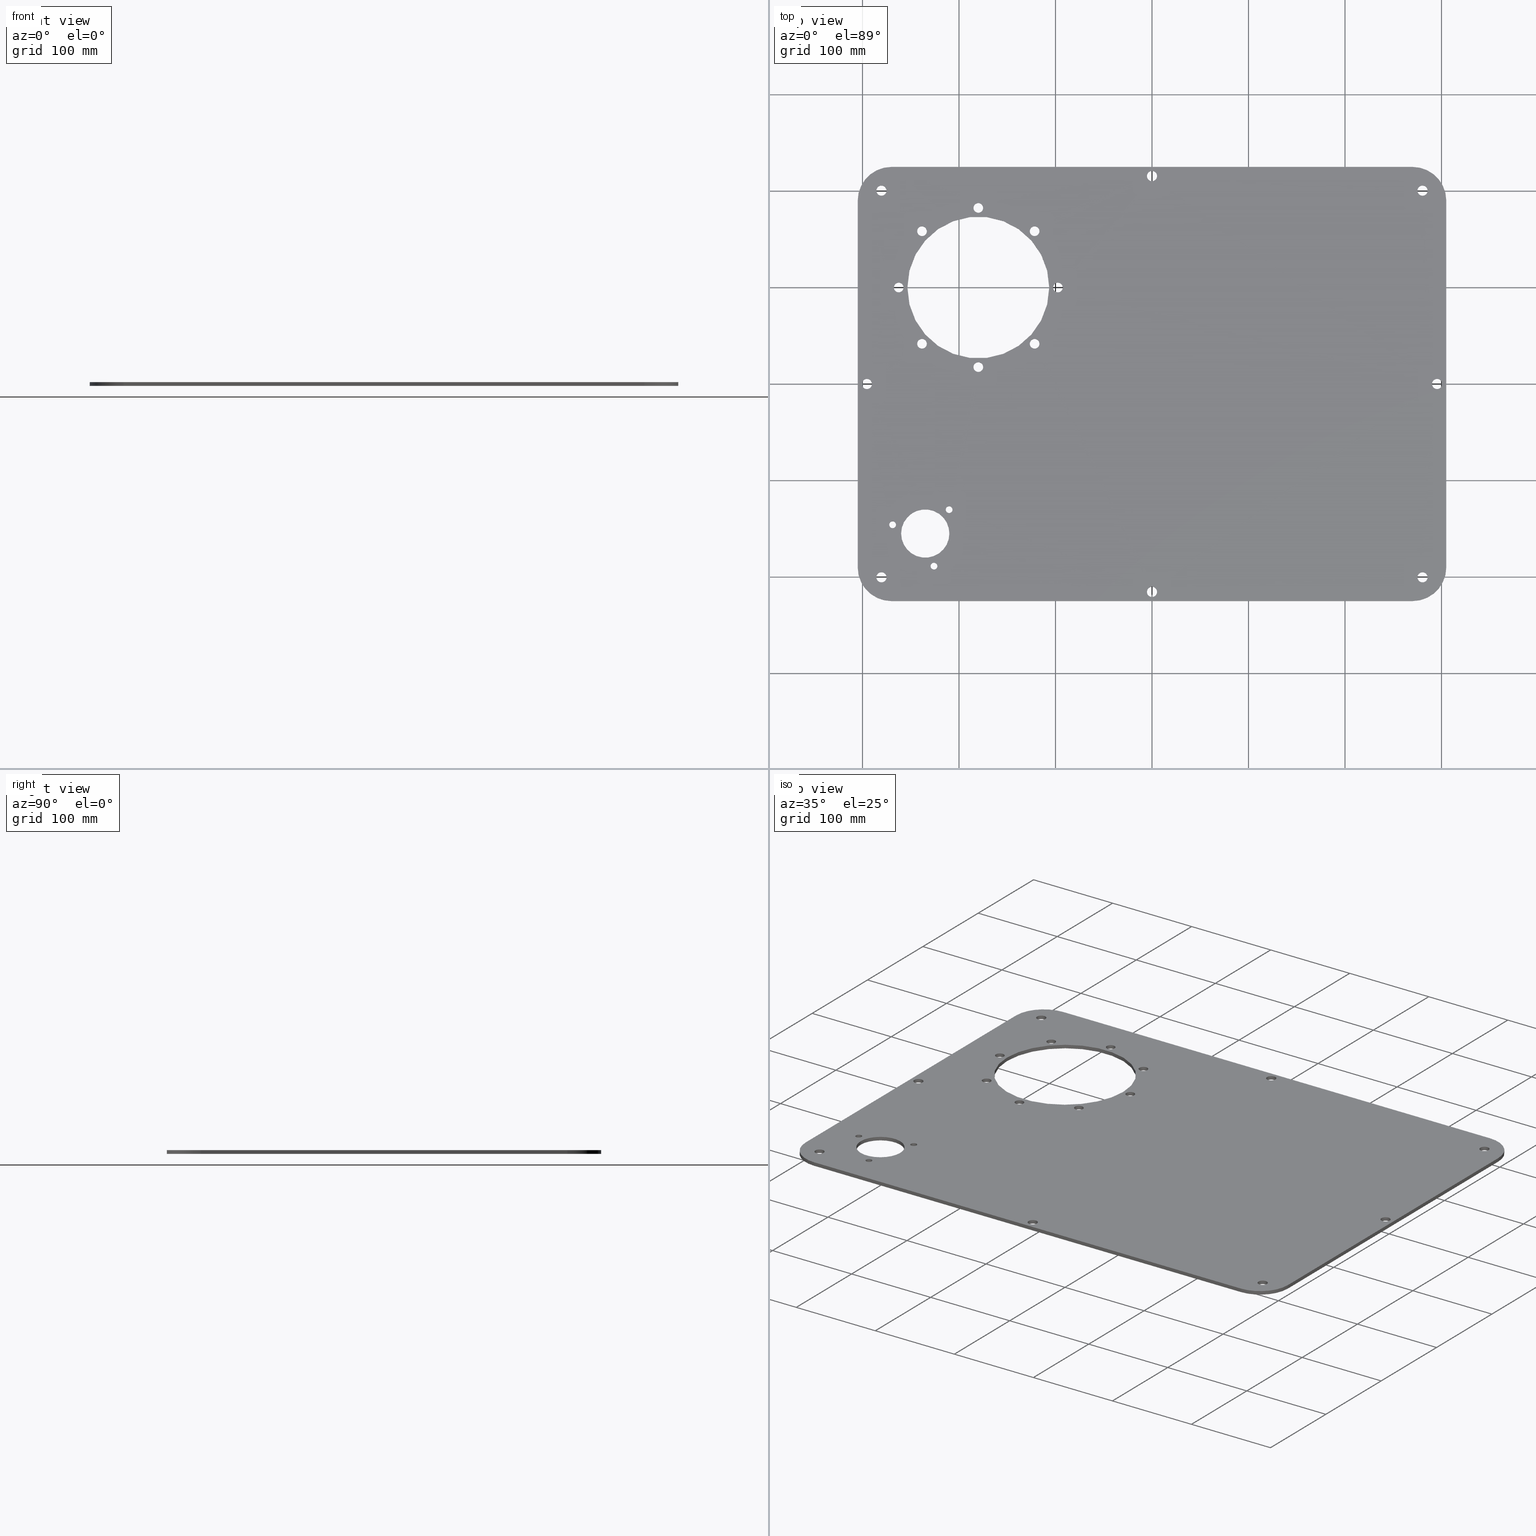
[diagram: canonical four-view strip — front | top / right | iso, engineering-drawing reading convention]
A machine part, canonical four-view strip (front | top / right | iso — engineering-drawing reading convention). The complete STEP part file that produces these views, byte-faithful:
ISO-10303-21;
HEADER;
/* Generated by software containing ST-Developer
 * from STEP Tools, Inc. (www.steptools.com) 
 */
/* OPTION: using custom schema-name function */

FILE_DESCRIPTION(
/* description */ (''),
/* implementation_level */ '2;1');

FILE_NAME(
/* name */ '70200',
/* time_stamp */ '2016-04-15T17:52:35+03:00',
/* author */ (''),
/* organization */ (''),
/* preprocessor_version */ 'ST-DEVELOPER v9',
/* originating_system */ 'UGS - NX 4.0',
/* authorisation */ '');

FILE_SCHEMA (('AUTOMOTIVE_DESIGN { 1 0 10303 214 1 1 1 1 }'));
ENDSEC;

DATA;
#10=SHAPE_REPRESENTATION_RELATIONSHIP('None',
'relationship between Form8D2Eoemn-None and Form8D2Eoemn-None',#22,#11);
#11=ADVANCED_BREP_SHAPE_REPRESENTATION('Form8D2Eoemn-None',(#32),#1041);
#12=SHAPE_DEFINITION_REPRESENTATION(#13,#22);
#13=PRODUCT_DEFINITION_SHAPE('','',#14);
#14=PRODUCT_DEFINITION(' ','',#16,#15);
#15=PRODUCT_DEFINITION_CONTEXT('part definition',#21,'design');
#16=PRODUCT_DEFINITION_FORMATION_WITH_SPECIFIED_SOURCE(' ',' ',#18,.NOT_KNOWN.);
#17=PRODUCT_RELATED_PRODUCT_CATEGORY('part','',(#18));
#18=PRODUCT('Form8D2Eoemn','Form8D2Eoemn',' ',(#19));
#19=PRODUCT_CONTEXT(' ',#21,'mechanical');
#20=APPLICATION_PROTOCOL_DEFINITION('international standard',
'automotive_design',2001,#21);
#21=APPLICATION_CONTEXT(
'core data for automotive mechanical design processes');
#22=SHAPE_REPRESENTATION('Form8D2Eoemn-None',(#622),#1041);
#23=PRESENTATION_LAYER_ASSIGNMENT('251','Layer 251',(#32));
#24=STYLED_ITEM('',(#25),#32);
#25=PRESENTATION_STYLE_ASSIGNMENT((#26));
#26=SURFACE_STYLE_USAGE(.BOTH.,#27);
#27=SURFACE_SIDE_STYLE('',(#28));
#28=SURFACE_STYLE_FILL_AREA(#29);
#29=FILL_AREA_STYLE('',(#30));
#30=FILL_AREA_STYLE_COLOUR('',#31);
#31=COLOUR_RGB('Light Gray',0.6,0.6,0.6);
#32=MANIFOLD_SOLID_BREP('',#33);
#33=CLOSED_SHELL('',(#124,#125,#126,#127,#128,#129,#130,#131,#132,#133,#134,
#135,#136,#137,#138,#139,#140,#141,#142,#143,#144,#145,#146,#147,#148,#149,
#150,#151,#152,#153,#154));
#34=FACE_BOUND('',#197,.T.);
#35=FACE_BOUND('',#198,.T.);
#36=FACE_BOUND('',#199,.T.);
#37=FACE_BOUND('',#200,.T.);
#38=FACE_BOUND('',#201,.T.);
#39=FACE_BOUND('',#202,.T.);
#40=FACE_BOUND('',#203,.T.);
#41=FACE_BOUND('',#204,.T.);
#42=FACE_BOUND('',#205,.T.);
#43=FACE_BOUND('',#206,.T.);
#44=FACE_BOUND('',#207,.T.);
#45=FACE_BOUND('',#208,.T.);
#46=FACE_BOUND('',#209,.T.);
#47=FACE_BOUND('',#210,.T.);
#48=FACE_BOUND('',#211,.T.);
#49=FACE_BOUND('',#212,.T.);
#50=FACE_BOUND('',#213,.T.);
#51=FACE_BOUND('',#214,.T.);
#52=FACE_BOUND('',#215,.T.);
#53=FACE_BOUND('',#216,.T.);
#54=FACE_BOUND('',#217,.T.);
#55=FACE_BOUND('',#218,.T.);
#56=FACE_BOUND('',#219,.T.);
#57=FACE_BOUND('',#220,.T.);
#58=FACE_BOUND('',#221,.T.);
#59=FACE_BOUND('',#222,.T.);
#60=FACE_BOUND('',#223,.T.);
#61=FACE_BOUND('',#224,.T.);
#62=FACE_BOUND('',#225,.T.);
#63=FACE_BOUND('',#226,.T.);
#64=FACE_BOUND('',#227,.T.);
#65=FACE_BOUND('',#228,.T.);
#66=FACE_BOUND('',#229,.T.);
#67=FACE_BOUND('',#230,.T.);
#68=FACE_BOUND('',#231,.T.);
#69=FACE_BOUND('',#232,.T.);
#70=FACE_BOUND('',#233,.T.);
#71=FACE_BOUND('',#234,.T.);
#72=FACE_BOUND('',#235,.T.);
#73=FACE_BOUND('',#236,.T.);
#74=FACE_BOUND('',#238,.T.);
#75=FACE_BOUND('',#239,.T.);
#76=FACE_BOUND('',#241,.T.);
#77=FACE_BOUND('',#242,.T.);
#78=FACE_BOUND('',#243,.T.);
#79=FACE_BOUND('',#244,.T.);
#80=FACE_BOUND('',#245,.T.);
#81=FACE_BOUND('',#246,.T.);
#82=FACE_BOUND('',#247,.T.);
#83=FACE_BOUND('',#248,.T.);
#84=FACE_BOUND('',#249,.T.);
#85=FACE_BOUND('',#250,.T.);
#86=FACE_BOUND('',#251,.T.);
#87=FACE_BOUND('',#252,.T.);
#88=FACE_BOUND('',#253,.T.);
#89=FACE_BOUND('',#254,.T.);
#90=FACE_BOUND('',#255,.T.);
#91=FACE_BOUND('',#256,.T.);
#92=FACE_BOUND('',#257,.T.);
#93=FACE_BOUND('',#258,.T.);
#94=FACE_BOUND('',#259,.T.);
#95=FACE_BOUND('',#260,.T.);
#96=FACE_BOUND('',#261,.T.);
#97=FACE_BOUND('',#263,.T.);
#98=FACE_BOUND('',#264,.T.);
#99=FACE_BOUND('',#265,.T.);
#100=FACE_BOUND('',#266,.T.);
#101=FACE_BOUND('',#267,.T.);
#102=FACE_BOUND('',#268,.T.);
#103=FACE_BOUND('',#269,.T.);
#104=FACE_BOUND('',#270,.T.);
#105=FACE_BOUND('',#271,.T.);
#106=FACE_BOUND('',#272,.T.);
#107=FACE_BOUND('',#273,.T.);
#108=FACE_BOUND('',#274,.T.);
#109=FACE_BOUND('',#275,.T.);
#110=FACE_BOUND('',#276,.T.);
#111=FACE_BOUND('',#277,.T.);
#112=FACE_BOUND('',#278,.T.);
#113=FACE_BOUND('',#279,.T.);
#114=FACE_BOUND('',#280,.T.);
#115=FACE_BOUND('',#281,.T.);
#116=FACE_BOUND('',#282,.T.);
#117=FACE_BOUND('',#283,.T.);
#118=PLANE('',#626);
#119=PLANE('',#630);
#120=PLANE('',#634);
#121=PLANE('',#698);
#122=PLANE('',#702);
#123=PLANE('',#703);
#124=ADVANCED_FACE('',(#180),#155,.T.);
#125=ADVANCED_FACE('',(#181),#118,.F.);
#126=ADVANCED_FACE('',(#182),#156,.T.);
#127=ADVANCED_FACE('',(#183),#119,.F.);
#128=ADVANCED_FACE('',(#184),#157,.T.);
#129=ADVANCED_FACE('',(#185),#120,.F.);
#130=ADVANCED_FACE('',(#186),#158,.T.);
#131=ADVANCED_FACE('',(#34,#35),#159,.F.);
#132=ADVANCED_FACE('',(#36,#37),#160,.F.);
#133=ADVANCED_FACE('',(#38,#39),#161,.F.);
#134=ADVANCED_FACE('',(#40,#41),#162,.F.);
#135=ADVANCED_FACE('',(#42,#43),#163,.F.);
#136=ADVANCED_FACE('',(#44,#45),#164,.F.);
#137=ADVANCED_FACE('',(#46,#47),#165,.F.);
#138=ADVANCED_FACE('',(#48,#49),#166,.F.);
#139=ADVANCED_FACE('',(#50,#51),#167,.F.);
#140=ADVANCED_FACE('',(#52,#53),#168,.F.);
#141=ADVANCED_FACE('',(#54,#55),#169,.F.);
#142=ADVANCED_FACE('',(#56,#57),#170,.F.);
#143=ADVANCED_FACE('',(#58,#59),#171,.F.);
#144=ADVANCED_FACE('',(#60,#61),#172,.F.);
#145=ADVANCED_FACE('',(#62,#63),#173,.F.);
#146=ADVANCED_FACE('',(#64,#65),#174,.F.);
#147=ADVANCED_FACE('',(#66,#67),#175,.F.);
#148=ADVANCED_FACE('',(#68,#69),#176,.F.);
#149=ADVANCED_FACE('',(#70,#71),#177,.F.);
#150=ADVANCED_FACE('',(#72,#73),#178,.F.);
#151=ADVANCED_FACE('',(#187),#121,.F.);
#152=ADVANCED_FACE('',(#74,#75),#179,.F.);
#153=ADVANCED_FACE('',(#188,#76,#77,#78,#79,#80,#81,#82,#83,#84,#85,#86,
#87,#88,#89,#90,#91,#92,#93,#94,#95,#96),#122,.T.);
#154=ADVANCED_FACE('',(#189,#97,#98,#99,#100,#101,#102,#103,#104,#105,#106,
#107,#108,#109,#110,#111,#112,#113,#114,#115,#116,#117),#123,.F.);
#155=CYLINDRICAL_SURFACE('',#625,35.);
#156=CYLINDRICAL_SURFACE('',#629,35.);
#157=CYLINDRICAL_SURFACE('',#633,35.);
#158=CYLINDRICAL_SURFACE('',#637,35.);
#159=CYLINDRICAL_SURFACE('',#640,5.);
#160=CYLINDRICAL_SURFACE('',#643,3.5);
#161=CYLINDRICAL_SURFACE('',#646,5.);
#162=CYLINDRICAL_SURFACE('',#649,5.25);
#163=CYLINDRICAL_SURFACE('',#652,5.25);
#164=CYLINDRICAL_SURFACE('',#655,73.5);
#165=CYLINDRICAL_SURFACE('',#658,5.25);
#166=CYLINDRICAL_SURFACE('',#661,5.);
#167=CYLINDRICAL_SURFACE('',#664,3.5);
#168=CYLINDRICAL_SURFACE('',#667,5.25);
#169=CYLINDRICAL_SURFACE('',#670,5.25);
#170=CYLINDRICAL_SURFACE('',#673,5.25);
#171=CYLINDRICAL_SURFACE('',#676,5.);
#172=CYLINDRICAL_SURFACE('',#679,5.25);
#173=CYLINDRICAL_SURFACE('',#682,25.);
#174=CYLINDRICAL_SURFACE('',#685,3.5);
#175=CYLINDRICAL_SURFACE('',#688,5.25);
#176=CYLINDRICAL_SURFACE('',#691,5.);
#177=CYLINDRICAL_SURFACE('',#694,5.);
#178=CYLINDRICAL_SURFACE('',#697,5.);
#179=CYLINDRICAL_SURFACE('',#701,5.);
#180=FACE_OUTER_BOUND('',#190,.T.);
#181=FACE_OUTER_BOUND('',#191,.T.);
#182=FACE_OUTER_BOUND('',#192,.T.);
#183=FACE_OUTER_BOUND('',#193,.T.);
#184=FACE_OUTER_BOUND('',#194,.T.);
#185=FACE_OUTER_BOUND('',#195,.T.);
#186=FACE_OUTER_BOUND('',#196,.T.);
#187=FACE_OUTER_BOUND('',#237,.T.);
#188=FACE_OUTER_BOUND('',#240,.T.);
#189=FACE_OUTER_BOUND('',#262,.T.);
#190=EDGE_LOOP('',(#316,#317,#318,#319));
#191=EDGE_LOOP('',(#320,#321,#322,#323));
#192=EDGE_LOOP('',(#324,#325,#326,#327));
#193=EDGE_LOOP('',(#328,#329,#330,#331));
#194=EDGE_LOOP('',(#332,#333,#334,#335));
#195=EDGE_LOOP('',(#336,#337,#338,#339));
#196=EDGE_LOOP('',(#340,#341,#342,#343));
#197=EDGE_LOOP('',(#344));
#198=EDGE_LOOP('',(#345));
#199=EDGE_LOOP('',(#346));
#200=EDGE_LOOP('',(#347));
#201=EDGE_LOOP('',(#348));
#202=EDGE_LOOP('',(#349));
#203=EDGE_LOOP('',(#350));
#204=EDGE_LOOP('',(#351));
#205=EDGE_LOOP('',(#352));
#206=EDGE_LOOP('',(#353));
#207=EDGE_LOOP('',(#354));
#208=EDGE_LOOP('',(#355));
#209=EDGE_LOOP('',(#356));
#210=EDGE_LOOP('',(#357));
#211=EDGE_LOOP('',(#358));
#212=EDGE_LOOP('',(#359));
#213=EDGE_LOOP('',(#360));
#214=EDGE_LOOP('',(#361));
#215=EDGE_LOOP('',(#362));
#216=EDGE_LOOP('',(#363));
#217=EDGE_LOOP('',(#364));
#218=EDGE_LOOP('',(#365));
#219=EDGE_LOOP('',(#366));
#220=EDGE_LOOP('',(#367));
#221=EDGE_LOOP('',(#368));
#222=EDGE_LOOP('',(#369));
#223=EDGE_LOOP('',(#370));
#224=EDGE_LOOP('',(#371));
#225=EDGE_LOOP('',(#372));
#226=EDGE_LOOP('',(#373));
#227=EDGE_LOOP('',(#374));
#228=EDGE_LOOP('',(#375));
#229=EDGE_LOOP('',(#376));
#230=EDGE_LOOP('',(#377));
#231=EDGE_LOOP('',(#378));
#232=EDGE_LOOP('',(#379));
#233=EDGE_LOOP('',(#380));
#234=EDGE_LOOP('',(#381));
#235=EDGE_LOOP('',(#382));
#236=EDGE_LOOP('',(#383));
#237=EDGE_LOOP('',(#384,#385,#386,#387));
#238=EDGE_LOOP('',(#388));
#239=EDGE_LOOP('',(#389));
#240=EDGE_LOOP('',(#390,#391,#392,#393,#394,#395,#396,#397));
#241=EDGE_LOOP('',(#398));
#242=EDGE_LOOP('',(#399));
#243=EDGE_LOOP('',(#400));
#244=EDGE_LOOP('',(#401));
#245=EDGE_LOOP('',(#402));
#246=EDGE_LOOP('',(#403));
#247=EDGE_LOOP('',(#404));
#248=EDGE_LOOP('',(#405));
#249=EDGE_LOOP('',(#406));
#250=EDGE_LOOP('',(#407));
#251=EDGE_LOOP('',(#408));
#252=EDGE_LOOP('',(#409));
#253=EDGE_LOOP('',(#410));
#254=EDGE_LOOP('',(#411));
#255=EDGE_LOOP('',(#412));
#256=EDGE_LOOP('',(#413));
#257=EDGE_LOOP('',(#414));
#258=EDGE_LOOP('',(#415));
#259=EDGE_LOOP('',(#416));
#260=EDGE_LOOP('',(#417));
#261=EDGE_LOOP('',(#418));
#262=EDGE_LOOP('',(#419,#420,#421,#422,#423,#424,#425,#426));
#263=EDGE_LOOP('',(#427));
#264=EDGE_LOOP('',(#428));
#265=EDGE_LOOP('',(#429));
#266=EDGE_LOOP('',(#430));
#267=EDGE_LOOP('',(#431));
#268=EDGE_LOOP('',(#432));
#269=EDGE_LOOP('',(#433));
#270=EDGE_LOOP('',(#434));
#271=EDGE_LOOP('',(#435));
#272=EDGE_LOOP('',(#436));
#273=EDGE_LOOP('',(#437));
#274=EDGE_LOOP('',(#438));
#275=EDGE_LOOP('',(#439));
#276=EDGE_LOOP('',(#440));
#277=EDGE_LOOP('',(#441));
#278=EDGE_LOOP('',(#442));
#279=EDGE_LOOP('',(#443));
#280=EDGE_LOOP('',(#444));
#281=EDGE_LOOP('',(#445));
#282=EDGE_LOOP('',(#446));
#283=EDGE_LOOP('',(#447));
#284=LINE('',#888,#300);
#285=LINE('',#892,#301);
#286=LINE('',#894,#302);
#287=LINE('',#896,#303);
#288=LINE('',#898,#304);
#289=LINE('',#902,#305);
#290=LINE('',#906,#306);
#291=LINE('',#908,#307);
#292=LINE('',#910,#308);
#293=LINE('',#914,#309);
#294=LINE('',#918,#310);
#295=LINE('',#920,#311);
#296=LINE('',#922,#312);
#297=LINE('',#926,#313);
#298=LINE('',#1030,#314);
#299=LINE('',#1031,#315);
#300=VECTOR('',#708,1.);
#301=VECTOR('',#711,1.);
#302=VECTOR('',#714,1.);
#303=VECTOR('',#715,1.);
#304=VECTOR('',#716,1.);
#305=VECTOR('',#721,1.);
#306=VECTOR('',#726,1.);
#307=VECTOR('',#727,1.);
#308=VECTOR('',#728,1.);
#309=VECTOR('',#733,1.);
#310=VECTOR('',#738,1.);
#311=VECTOR('',#739,1.);
#312=VECTOR('',#740,1.);
#313=VECTOR('',#745,1.);
#314=VECTOR('',#870,1.);
#315=VECTOR('',#871,1.);
#316=ORIENTED_EDGE('',*,*,#506,.T.);
#317=ORIENTED_EDGE('',*,*,#507,.F.);
#318=ORIENTED_EDGE('',*,*,#508,.F.);
#319=ORIENTED_EDGE('',*,*,#509,.T.);
#320=ORIENTED_EDGE('',*,*,#510,.T.);
#321=ORIENTED_EDGE('',*,*,#511,.F.);
#322=ORIENTED_EDGE('',*,*,#512,.F.);
#323=ORIENTED_EDGE('',*,*,#507,.T.);
#324=ORIENTED_EDGE('',*,*,#513,.T.);
#325=ORIENTED_EDGE('',*,*,#514,.F.);
#326=ORIENTED_EDGE('',*,*,#515,.F.);
#327=ORIENTED_EDGE('',*,*,#511,.T.);
#328=ORIENTED_EDGE('',*,*,#516,.T.);
#329=ORIENTED_EDGE('',*,*,#517,.F.);
#330=ORIENTED_EDGE('',*,*,#518,.F.);
#331=ORIENTED_EDGE('',*,*,#514,.T.);
#332=ORIENTED_EDGE('',*,*,#519,.T.);
#333=ORIENTED_EDGE('',*,*,#520,.F.);
#334=ORIENTED_EDGE('',*,*,#521,.F.);
#335=ORIENTED_EDGE('',*,*,#517,.T.);
#336=ORIENTED_EDGE('',*,*,#522,.T.);
#337=ORIENTED_EDGE('',*,*,#523,.F.);
#338=ORIENTED_EDGE('',*,*,#524,.F.);
#339=ORIENTED_EDGE('',*,*,#520,.T.);
#340=ORIENTED_EDGE('',*,*,#525,.T.);
#341=ORIENTED_EDGE('',*,*,#526,.F.);
#342=ORIENTED_EDGE('',*,*,#527,.F.);
#343=ORIENTED_EDGE('',*,*,#523,.T.);
#344=ORIENTED_EDGE('',*,*,#528,.T.);
#345=ORIENTED_EDGE('',*,*,#529,.F.);
#346=ORIENTED_EDGE('',*,*,#530,.F.);
#347=ORIENTED_EDGE('',*,*,#531,.T.);
#348=ORIENTED_EDGE('',*,*,#532,.T.);
#349=ORIENTED_EDGE('',*,*,#533,.F.);
#350=ORIENTED_EDGE('',*,*,#534,.T.);
#351=ORIENTED_EDGE('',*,*,#535,.F.);
#352=ORIENTED_EDGE('',*,*,#536,.F.);
#353=ORIENTED_EDGE('',*,*,#537,.T.);
#354=ORIENTED_EDGE('',*,*,#538,.T.);
#355=ORIENTED_EDGE('',*,*,#539,.F.);
#356=ORIENTED_EDGE('',*,*,#540,.T.);
#357=ORIENTED_EDGE('',*,*,#541,.F.);
#358=ORIENTED_EDGE('',*,*,#542,.T.);
#359=ORIENTED_EDGE('',*,*,#543,.F.);
#360=ORIENTED_EDGE('',*,*,#544,.F.);
#361=ORIENTED_EDGE('',*,*,#545,.T.);
#362=ORIENTED_EDGE('',*,*,#546,.F.);
#363=ORIENTED_EDGE('',*,*,#547,.T.);
#364=ORIENTED_EDGE('',*,*,#548,.F.);
#365=ORIENTED_EDGE('',*,*,#549,.T.);
#366=ORIENTED_EDGE('',*,*,#550,.F.);
#367=ORIENTED_EDGE('',*,*,#551,.T.);
#368=ORIENTED_EDGE('',*,*,#552,.T.);
#369=ORIENTED_EDGE('',*,*,#553,.F.);
#370=ORIENTED_EDGE('',*,*,#554,.T.);
#371=ORIENTED_EDGE('',*,*,#555,.F.);
#372=ORIENTED_EDGE('',*,*,#556,.F.);
#373=ORIENTED_EDGE('',*,*,#557,.T.);
#374=ORIENTED_EDGE('',*,*,#558,.F.);
#375=ORIENTED_EDGE('',*,*,#559,.T.);
#376=ORIENTED_EDGE('',*,*,#560,.T.);
#377=ORIENTED_EDGE('',*,*,#561,.F.);
#378=ORIENTED_EDGE('',*,*,#562,.T.);
#379=ORIENTED_EDGE('',*,*,#563,.F.);
#380=ORIENTED_EDGE('',*,*,#564,.T.);
#381=ORIENTED_EDGE('',*,*,#565,.F.);
#382=ORIENTED_EDGE('',*,*,#566,.T.);
#383=ORIENTED_EDGE('',*,*,#567,.F.);
#384=ORIENTED_EDGE('',*,*,#568,.T.);
#385=ORIENTED_EDGE('',*,*,#509,.F.);
#386=ORIENTED_EDGE('',*,*,#569,.F.);
#387=ORIENTED_EDGE('',*,*,#526,.T.);
#388=ORIENTED_EDGE('',*,*,#570,.T.);
#389=ORIENTED_EDGE('',*,*,#571,.F.);
#390=ORIENTED_EDGE('',*,*,#508,.T.);
#391=ORIENTED_EDGE('',*,*,#512,.T.);
#392=ORIENTED_EDGE('',*,*,#515,.T.);
#393=ORIENTED_EDGE('',*,*,#518,.T.);
#394=ORIENTED_EDGE('',*,*,#521,.T.);
#395=ORIENTED_EDGE('',*,*,#524,.T.);
#396=ORIENTED_EDGE('',*,*,#527,.T.);
#397=ORIENTED_EDGE('',*,*,#569,.T.);
#398=ORIENTED_EDGE('',*,*,#566,.F.);
#399=ORIENTED_EDGE('',*,*,#564,.F.);
#400=ORIENTED_EDGE('',*,*,#562,.F.);
#401=ORIENTED_EDGE('',*,*,#560,.F.);
#402=ORIENTED_EDGE('',*,*,#558,.T.);
#403=ORIENTED_EDGE('',*,*,#556,.T.);
#404=ORIENTED_EDGE('',*,*,#554,.F.);
#405=ORIENTED_EDGE('',*,*,#552,.F.);
#406=ORIENTED_EDGE('',*,*,#550,.T.);
#407=ORIENTED_EDGE('',*,*,#548,.T.);
#408=ORIENTED_EDGE('',*,*,#546,.T.);
#409=ORIENTED_EDGE('',*,*,#544,.T.);
#410=ORIENTED_EDGE('',*,*,#542,.F.);
#411=ORIENTED_EDGE('',*,*,#540,.F.);
#412=ORIENTED_EDGE('',*,*,#538,.F.);
#413=ORIENTED_EDGE('',*,*,#536,.T.);
#414=ORIENTED_EDGE('',*,*,#534,.F.);
#415=ORIENTED_EDGE('',*,*,#532,.F.);
#416=ORIENTED_EDGE('',*,*,#530,.T.);
#417=ORIENTED_EDGE('',*,*,#528,.F.);
#418=ORIENTED_EDGE('',*,*,#570,.F.);
#419=ORIENTED_EDGE('',*,*,#506,.F.);
#420=ORIENTED_EDGE('',*,*,#568,.F.);
#421=ORIENTED_EDGE('',*,*,#525,.F.);
#422=ORIENTED_EDGE('',*,*,#522,.F.);
#423=ORIENTED_EDGE('',*,*,#519,.F.);
#424=ORIENTED_EDGE('',*,*,#516,.F.);
#425=ORIENTED_EDGE('',*,*,#513,.F.);
#426=ORIENTED_EDGE('',*,*,#510,.F.);
#427=ORIENTED_EDGE('',*,*,#567,.T.);
#428=ORIENTED_EDGE('',*,*,#565,.T.);
#429=ORIENTED_EDGE('',*,*,#563,.T.);
#430=ORIENTED_EDGE('',*,*,#561,.T.);
#431=ORIENTED_EDGE('',*,*,#559,.F.);
#432=ORIENTED_EDGE('',*,*,#557,.F.);
#433=ORIENTED_EDGE('',*,*,#555,.T.);
#434=ORIENTED_EDGE('',*,*,#553,.T.);
#435=ORIENTED_EDGE('',*,*,#551,.F.);
#436=ORIENTED_EDGE('',*,*,#549,.F.);
#437=ORIENTED_EDGE('',*,*,#547,.F.);
#438=ORIENTED_EDGE('',*,*,#545,.F.);
#439=ORIENTED_EDGE('',*,*,#543,.T.);
#440=ORIENTED_EDGE('',*,*,#541,.T.);
#441=ORIENTED_EDGE('',*,*,#539,.T.);
#442=ORIENTED_EDGE('',*,*,#537,.F.);
#443=ORIENTED_EDGE('',*,*,#535,.T.);
#444=ORIENTED_EDGE('',*,*,#533,.T.);
#445=ORIENTED_EDGE('',*,*,#531,.F.);
#446=ORIENTED_EDGE('',*,*,#529,.T.);
#447=ORIENTED_EDGE('',*,*,#571,.T.);
#448=VERTEX_POINT('',#886);
#449=VERTEX_POINT('',#887);
#450=VERTEX_POINT('',#889);
#451=VERTEX_POINT('',#891);
#452=VERTEX_POINT('',#895);
#453=VERTEX_POINT('',#897);
#454=VERTEX_POINT('',#901);
#455=VERTEX_POINT('',#903);
#456=VERTEX_POINT('',#907);
#457=VERTEX_POINT('',#909);
#458=VERTEX_POINT('',#913);
#459=VERTEX_POINT('',#915);
#460=VERTEX_POINT('',#919);
#461=VERTEX_POINT('',#921);
#462=VERTEX_POINT('',#925);
#463=VERTEX_POINT('',#927);
#464=VERTEX_POINT('',#931);
#465=VERTEX_POINT('',#933);
#466=VERTEX_POINT('',#936);
#467=VERTEX_POINT('',#938);
#468=VERTEX_POINT('',#941);
#469=VERTEX_POINT('',#943);
#470=VERTEX_POINT('',#946);
#471=VERTEX_POINT('',#948);
#472=VERTEX_POINT('',#951);
#473=VERTEX_POINT('',#953);
#474=VERTEX_POINT('',#956);
#475=VERTEX_POINT('',#958);
#476=VERTEX_POINT('',#961);
#477=VERTEX_POINT('',#963);
#478=VERTEX_POINT('',#966);
#479=VERTEX_POINT('',#968);
#480=VERTEX_POINT('',#971);
#481=VERTEX_POINT('',#973);
#482=VERTEX_POINT('',#976);
#483=VERTEX_POINT('',#978);
#484=VERTEX_POINT('',#981);
#485=VERTEX_POINT('',#983);
#486=VERTEX_POINT('',#986);
#487=VERTEX_POINT('',#988);
#488=VERTEX_POINT('',#991);
#489=VERTEX_POINT('',#993);
#490=VERTEX_POINT('',#996);
#491=VERTEX_POINT('',#998);
#492=VERTEX_POINT('',#1001);
#493=VERTEX_POINT('',#1003);
#494=VERTEX_POINT('',#1006);
#495=VERTEX_POINT('',#1008);
#496=VERTEX_POINT('',#1011);
#497=VERTEX_POINT('',#1013);
#498=VERTEX_POINT('',#1016);
#499=VERTEX_POINT('',#1018);
#500=VERTEX_POINT('',#1021);
#501=VERTEX_POINT('',#1023);
#502=VERTEX_POINT('',#1026);
#503=VERTEX_POINT('',#1028);
#504=VERTEX_POINT('',#1034);
#505=VERTEX_POINT('',#1036);
#506=EDGE_CURVE('',#448,#449,#572,.T.);
#507=EDGE_CURVE('',#450,#449,#284,.T.);
#508=EDGE_CURVE('',#451,#450,#573,.T.);
#509=EDGE_CURVE('',#451,#448,#285,.T.);
#510=EDGE_CURVE('',#449,#452,#286,.T.);
#511=EDGE_CURVE('',#453,#452,#287,.T.);
#512=EDGE_CURVE('',#450,#453,#288,.T.);
#513=EDGE_CURVE('',#452,#454,#574,.T.);
#514=EDGE_CURVE('',#455,#454,#289,.T.);
#515=EDGE_CURVE('',#453,#455,#575,.T.);
#516=EDGE_CURVE('',#454,#456,#290,.T.);
#517=EDGE_CURVE('',#457,#456,#291,.T.);
#518=EDGE_CURVE('',#455,#457,#292,.T.);
#519=EDGE_CURVE('',#456,#458,#576,.T.);
#520=EDGE_CURVE('',#459,#458,#293,.T.);
#521=EDGE_CURVE('',#457,#459,#577,.T.);
#522=EDGE_CURVE('',#458,#460,#294,.T.);
#523=EDGE_CURVE('',#461,#460,#295,.T.);
#524=EDGE_CURVE('',#459,#461,#296,.T.);
#525=EDGE_CURVE('',#460,#462,#578,.T.);
#526=EDGE_CURVE('',#463,#462,#297,.T.);
#527=EDGE_CURVE('',#461,#463,#579,.T.);
#528=EDGE_CURVE('',#464,#464,#580,.T.);
#529=EDGE_CURVE('',#465,#465,#581,.T.);
#530=EDGE_CURVE('',#466,#466,#582,.T.);
#531=EDGE_CURVE('',#467,#467,#583,.T.);
#532=EDGE_CURVE('',#468,#468,#584,.T.);
#533=EDGE_CURVE('',#469,#469,#585,.T.);
#534=EDGE_CURVE('',#470,#470,#586,.T.);
#535=EDGE_CURVE('',#471,#471,#587,.T.);
#536=EDGE_CURVE('',#472,#472,#588,.T.);
#537=EDGE_CURVE('',#473,#473,#589,.T.);
#538=EDGE_CURVE('',#474,#474,#590,.T.);
#539=EDGE_CURVE('',#475,#475,#591,.T.);
#540=EDGE_CURVE('',#476,#476,#592,.T.);
#541=EDGE_CURVE('',#477,#477,#593,.T.);
#542=EDGE_CURVE('',#478,#478,#594,.T.);
#543=EDGE_CURVE('',#479,#479,#595,.T.);
#544=EDGE_CURVE('',#480,#480,#596,.T.);
#545=EDGE_CURVE('',#481,#481,#597,.T.);
#546=EDGE_CURVE('',#482,#482,#598,.T.);
#547=EDGE_CURVE('',#483,#483,#599,.T.);
#548=EDGE_CURVE('',#484,#484,#600,.T.);
#549=EDGE_CURVE('',#485,#485,#601,.T.);
#550=EDGE_CURVE('',#486,#486,#602,.T.);
#551=EDGE_CURVE('',#487,#487,#603,.T.);
#552=EDGE_CURVE('',#488,#488,#604,.T.);
#553=EDGE_CURVE('',#489,#489,#605,.T.);
#554=EDGE_CURVE('',#490,#490,#606,.T.);
#555=EDGE_CURVE('',#491,#491,#607,.T.);
#556=EDGE_CURVE('',#492,#492,#608,.T.);
#557=EDGE_CURVE('',#493,#493,#609,.T.);
#558=EDGE_CURVE('',#494,#494,#610,.T.);
#559=EDGE_CURVE('',#495,#495,#611,.T.);
#560=EDGE_CURVE('',#496,#496,#612,.T.);
#561=EDGE_CURVE('',#497,#497,#613,.T.);
#562=EDGE_CURVE('',#498,#498,#614,.T.);
#563=EDGE_CURVE('',#499,#499,#615,.T.);
#564=EDGE_CURVE('',#500,#500,#616,.T.);
#565=EDGE_CURVE('',#501,#501,#617,.T.);
#566=EDGE_CURVE('',#502,#502,#618,.T.);
#567=EDGE_CURVE('',#503,#503,#619,.T.);
#568=EDGE_CURVE('',#462,#448,#298,.T.);
#569=EDGE_CURVE('',#463,#451,#299,.T.);
#570=EDGE_CURVE('',#504,#504,#620,.T.);
#571=EDGE_CURVE('',#505,#505,#621,.T.);
#572=CIRCLE('',#623,35.);
#573=CIRCLE('',#624,35.);
#574=CIRCLE('',#627,35.);
#575=CIRCLE('',#628,35.);
#576=CIRCLE('',#631,35.);
#577=CIRCLE('',#632,35.);
#578=CIRCLE('',#635,35.);
#579=CIRCLE('',#636,35.);
#580=CIRCLE('',#638,5.);
#581=CIRCLE('',#639,5.);
#582=CIRCLE('',#641,3.5);
#583=CIRCLE('',#642,3.5);
#584=CIRCLE('',#644,5.);
#585=CIRCLE('',#645,5.);
#586=CIRCLE('',#647,5.25);
#587=CIRCLE('',#648,5.25);
#588=CIRCLE('',#650,5.25);
#589=CIRCLE('',#651,5.25);
#590=CIRCLE('',#653,73.5);
#591=CIRCLE('',#654,73.5);
#592=CIRCLE('',#656,5.25);
#593=CIRCLE('',#657,5.25);
#594=CIRCLE('',#659,5.);
#595=CIRCLE('',#660,5.);
#596=CIRCLE('',#662,3.5);
#597=CIRCLE('',#663,3.5);
#598=CIRCLE('',#665,5.25);
#599=CIRCLE('',#666,5.25);
#600=CIRCLE('',#668,5.25);
#601=CIRCLE('',#669,5.25);
#602=CIRCLE('',#671,5.25);
#603=CIRCLE('',#672,5.25);
#604=CIRCLE('',#674,5.);
#605=CIRCLE('',#675,5.);
#606=CIRCLE('',#677,5.25);
#607=CIRCLE('',#678,5.25);
#608=CIRCLE('',#680,25.);
#609=CIRCLE('',#681,25.);
#610=CIRCLE('',#683,3.5);
#611=CIRCLE('',#684,3.5);
#612=CIRCLE('',#686,5.25);
#613=CIRCLE('',#687,5.25);
#614=CIRCLE('',#689,5.);
#615=CIRCLE('',#690,5.);
#616=CIRCLE('',#692,5.);
#617=CIRCLE('',#693,5.);
#618=CIRCLE('',#695,5.);
#619=CIRCLE('',#696,5.);
#620=CIRCLE('',#699,5.);
#621=CIRCLE('',#700,5.);
#622=AXIS2_PLACEMENT_3D('',#884,#704,#705);
#623=AXIS2_PLACEMENT_3D('',#885,#706,#707);
#624=AXIS2_PLACEMENT_3D('',#890,#709,#710);
#625=AXIS2_PLACEMENT_3D('',#893,#712,#713);
#626=AXIS2_PLACEMENT_3D('',#899,#717,#718);
#627=AXIS2_PLACEMENT_3D('',#900,#719,#720);
#628=AXIS2_PLACEMENT_3D('',#904,#722,#723);
#629=AXIS2_PLACEMENT_3D('',#905,#724,#725);
#630=AXIS2_PLACEMENT_3D('',#911,#729,#730);
#631=AXIS2_PLACEMENT_3D('',#912,#731,#732);
#632=AXIS2_PLACEMENT_3D('',#916,#734,#735);
#633=AXIS2_PLACEMENT_3D('',#917,#736,#737);
#634=AXIS2_PLACEMENT_3D('',#923,#741,#742);
#635=AXIS2_PLACEMENT_3D('',#924,#743,#744);
#636=AXIS2_PLACEMENT_3D('',#928,#746,#747);
#637=AXIS2_PLACEMENT_3D('',#929,#748,#749);
#638=AXIS2_PLACEMENT_3D('',#930,#750,#751);
#639=AXIS2_PLACEMENT_3D('',#932,#752,#753);
#640=AXIS2_PLACEMENT_3D('',#934,#754,#755);
#641=AXIS2_PLACEMENT_3D('',#935,#756,#757);
#642=AXIS2_PLACEMENT_3D('',#937,#758,#759);
#643=AXIS2_PLACEMENT_3D('',#939,#760,#761);
#644=AXIS2_PLACEMENT_3D('',#940,#762,#763);
#645=AXIS2_PLACEMENT_3D('',#942,#764,#765);
#646=AXIS2_PLACEMENT_3D('',#944,#766,#767);
#647=AXIS2_PLACEMENT_3D('',#945,#768,#769);
#648=AXIS2_PLACEMENT_3D('',#947,#770,#771);
#649=AXIS2_PLACEMENT_3D('',#949,#772,#773);
#650=AXIS2_PLACEMENT_3D('',#950,#774,#775);
#651=AXIS2_PLACEMENT_3D('',#952,#776,#777);
#652=AXIS2_PLACEMENT_3D('',#954,#778,#779);
#653=AXIS2_PLACEMENT_3D('',#955,#780,#781);
#654=AXIS2_PLACEMENT_3D('',#957,#782,#783);
#655=AXIS2_PLACEMENT_3D('',#959,#784,#785);
#656=AXIS2_PLACEMENT_3D('',#960,#786,#787);
#657=AXIS2_PLACEMENT_3D('',#962,#788,#789);
#658=AXIS2_PLACEMENT_3D('',#964,#790,#791);
#659=AXIS2_PLACEMENT_3D('',#965,#792,#793);
#660=AXIS2_PLACEMENT_3D('',#967,#794,#795);
#661=AXIS2_PLACEMENT_3D('',#969,#796,#797);
#662=AXIS2_PLACEMENT_3D('',#970,#798,#799);
#663=AXIS2_PLACEMENT_3D('',#972,#800,#801);
#664=AXIS2_PLACEMENT_3D('',#974,#802,#803);
#665=AXIS2_PLACEMENT_3D('',#975,#804,#805);
#666=AXIS2_PLACEMENT_3D('',#977,#806,#807);
#667=AXIS2_PLACEMENT_3D('',#979,#808,#809);
#668=AXIS2_PLACEMENT_3D('',#980,#810,#811);
#669=AXIS2_PLACEMENT_3D('',#982,#812,#813);
#670=AXIS2_PLACEMENT_3D('',#984,#814,#815);
#671=AXIS2_PLACEMENT_3D('',#985,#816,#817);
#672=AXIS2_PLACEMENT_3D('',#987,#818,#819);
#673=AXIS2_PLACEMENT_3D('',#989,#820,#821);
#674=AXIS2_PLACEMENT_3D('',#990,#822,#823);
#675=AXIS2_PLACEMENT_3D('',#992,#824,#825);
#676=AXIS2_PLACEMENT_3D('',#994,#826,#827);
#677=AXIS2_PLACEMENT_3D('',#995,#828,#829);
#678=AXIS2_PLACEMENT_3D('',#997,#830,#831);
#679=AXIS2_PLACEMENT_3D('',#999,#832,#833);
#680=AXIS2_PLACEMENT_3D('',#1000,#834,#835);
#681=AXIS2_PLACEMENT_3D('',#1002,#836,#837);
#682=AXIS2_PLACEMENT_3D('',#1004,#838,#839);
#683=AXIS2_PLACEMENT_3D('',#1005,#840,#841);
#684=AXIS2_PLACEMENT_3D('',#1007,#842,#843);
#685=AXIS2_PLACEMENT_3D('',#1009,#844,#845);
#686=AXIS2_PLACEMENT_3D('',#1010,#846,#847);
#687=AXIS2_PLACEMENT_3D('',#1012,#848,#849);
#688=AXIS2_PLACEMENT_3D('',#1014,#850,#851);
#689=AXIS2_PLACEMENT_3D('',#1015,#852,#853);
#690=AXIS2_PLACEMENT_3D('',#1017,#854,#855);
#691=AXIS2_PLACEMENT_3D('',#1019,#856,#857);
#692=AXIS2_PLACEMENT_3D('',#1020,#858,#859);
#693=AXIS2_PLACEMENT_3D('',#1022,#860,#861);
#694=AXIS2_PLACEMENT_3D('',#1024,#862,#863);
#695=AXIS2_PLACEMENT_3D('',#1025,#864,#865);
#696=AXIS2_PLACEMENT_3D('',#1027,#866,#867);
#697=AXIS2_PLACEMENT_3D('',#1029,#868,#869);
#698=AXIS2_PLACEMENT_3D('',#1032,#872,#873);
#699=AXIS2_PLACEMENT_3D('',#1033,#874,#875);
#700=AXIS2_PLACEMENT_3D('',#1035,#876,#877);
#701=AXIS2_PLACEMENT_3D('',#1037,#878,#879);
#702=AXIS2_PLACEMENT_3D('',#1038,#880,#881);
#703=AXIS2_PLACEMENT_3D('',#1039,#882,#883);
#704=DIRECTION('',(0.,0.,1.));
#705=DIRECTION('',(1.,0.,0.));
#706=DIRECTION('',(0.,0.,1.));
#707=DIRECTION('',(1.,0.,0.));
#708=DIRECTION('',(0.,0.,-1.));
#709=DIRECTION('',(0.,0.,1.));
#710=DIRECTION('',(1.,0.,0.));
#711=DIRECTION('',(0.,0.,-1.));
#712=DIRECTION('',(0.,0.,-1.));
#713=DIRECTION('',(-1.,0.,0.));
#714=DIRECTION('',(1.,0.,0.));
#715=DIRECTION('',(0.,0.,-1.));
#716=DIRECTION('',(1.,0.,0.));
#717=DIRECTION('',(0.,1.,0.));
#718=DIRECTION('',(0.,0.,1.));
#719=DIRECTION('',(0.,0.,1.));
#720=DIRECTION('',(0.999999999999998,0.,0.));
#721=DIRECTION('',(0.,0.,-1.));
#722=DIRECTION('',(0.,0.,1.));
#723=DIRECTION('',(0.999999999999998,0.,0.));
#724=DIRECTION('',(0.,0.,-1.));
#725=DIRECTION('',(-0.999999999999998,0.,0.));
#726=DIRECTION('',(0.,1.,0.));
#727=DIRECTION('',(0.,0.,-1.));
#728=DIRECTION('',(0.,1.,0.));
#729=DIRECTION('',(-1.,0.,0.));
#730=DIRECTION('',(0.,0.,1.));
#731=DIRECTION('',(0.,0.,1.));
#732=DIRECTION('',(0.999999999999998,0.,0.));
#733=DIRECTION('',(0.,0.,-1.));
#734=DIRECTION('',(0.,0.,1.));
#735=DIRECTION('',(0.999999999999998,0.,0.));
#736=DIRECTION('',(0.,0.,-1.));
#737=DIRECTION('',(-0.999999999999998,0.,0.));
#738=DIRECTION('',(-1.,0.,0.));
#739=DIRECTION('',(0.,0.,-1.));
#740=DIRECTION('',(-1.,0.,0.));
#741=DIRECTION('',(0.,-1.,0.));
#742=DIRECTION('',(0.,0.,-1.));
#743=DIRECTION('',(0.,0.,1.));
#744=DIRECTION('',(1.,0.,0.));
#745=DIRECTION('',(0.,0.,-1.));
#746=DIRECTION('',(0.,0.,1.));
#747=DIRECTION('',(1.,0.,0.));
#748=DIRECTION('',(0.,0.,-1.));
#749=DIRECTION('',(-1.,0.,0.));
#750=DIRECTION('',(0.,0.,1.));
#751=DIRECTION('',(0.,-0.999999999999979,0.));
#752=DIRECTION('',(0.,0.,1.));
#753=DIRECTION('',(0.,-0.999999999999979,0.));
#754=DIRECTION('',(0.,0.,-1.));
#755=DIRECTION('',(-1.,0.,0.));
#756=DIRECTION('',(0.,0.,-1.));
#757=DIRECTION('',(0.25881904510253,-0.96592582628904,0.));
#758=DIRECTION('',(0.,0.,-1.));
#759=DIRECTION('',(0.25881904510253,-0.96592582628904,0.));
#760=DIRECTION('',(0.,0.,-1.));
#761=DIRECTION('',(-0.999999999999985,0.,0.));
#762=DIRECTION('',(0.,0.,1.));
#763=DIRECTION('',(-0.707106781186551,0.707106781186528,0.));
#764=DIRECTION('',(0.,0.,1.));
#765=DIRECTION('',(-0.707106781186551,0.707106781186528,0.));
#766=DIRECTION('',(0.,0.,-1.));
#767=DIRECTION('',(-1.,0.,0.));
#768=DIRECTION('',(0.,0.,1.));
#769=DIRECTION('',(0.999999999999996,0.,0.));
#770=DIRECTION('',(0.,0.,1.));
#771=DIRECTION('',(0.999999999999996,0.,0.));
#772=DIRECTION('',(0.,0.,-1.));
#773=DIRECTION('',(-0.999999999999996,0.,0.));
#774=DIRECTION('',(0.,0.,-1.));
#775=DIRECTION('',(0.999999999999996,0.,0.));
#776=DIRECTION('',(0.,0.,-1.));
#777=DIRECTION('',(0.999999999999996,0.,0.));
#778=DIRECTION('',(0.,0.,-1.));
#779=DIRECTION('',(-0.999999999999996,0.,0.));
#780=DIRECTION('',(0.,0.,1.));
#781=DIRECTION('',(1.,0.,0.));
#782=DIRECTION('',(0.,0.,1.));
#783=DIRECTION('',(1.,0.,0.));
#784=DIRECTION('',(0.,0.,-1.));
#785=DIRECTION('',(-1.,0.,0.));
#786=DIRECTION('',(0.,0.,1.));
#787=DIRECTION('',(0.999999999999996,0.,0.));
#788=DIRECTION('',(0.,0.,1.));
#789=DIRECTION('',(0.999999999999996,0.,0.));
#790=DIRECTION('',(0.,0.,-1.));
#791=DIRECTION('',(-0.999999999999996,0.,0.));
#792=DIRECTION('',(0.,0.,1.));
#793=DIRECTION('',(0.707106781186551,-0.707106781186528,0.));
#794=DIRECTION('',(0.,0.,1.));
#795=DIRECTION('',(0.707106781186551,-0.707106781186528,0.));
#796=DIRECTION('',(0.,0.,-1.));
#797=DIRECTION('',(-1.,0.,0.));
#798=DIRECTION('',(0.,0.,-1.));
#799=DIRECTION('',(-0.965925826289071,0.258819045102499,0.));
#800=DIRECTION('',(0.,0.,-1.));
#801=DIRECTION('',(-0.965925826289071,0.258819045102499,0.));
#802=DIRECTION('',(0.,0.,-1.));
#803=DIRECTION('',(-0.999999999999985,0.,0.));
#804=DIRECTION('',(0.,0.,-1.));
#805=DIRECTION('',(-0.999999999999996,0.,0.));
#806=DIRECTION('',(0.,0.,-1.));
#807=DIRECTION('',(-0.999999999999996,0.,0.));
#808=DIRECTION('',(0.,0.,-1.));
#809=DIRECTION('',(-0.999999999999996,0.,0.));
#810=DIRECTION('',(0.,0.,-1.));
#811=DIRECTION('',(0.999999999999996,0.,0.));
#812=DIRECTION('',(0.,0.,-1.));
#813=DIRECTION('',(0.999999999999996,0.,0.));
#814=DIRECTION('',(0.,0.,-1.));
#815=DIRECTION('',(-0.999999999999996,0.,0.));
#816=DIRECTION('',(0.,0.,-1.));
#817=DIRECTION('',(-0.707106781186541,-0.707106781186541,0.));
#818=DIRECTION('',(0.,0.,-1.));
#819=DIRECTION('',(-0.707106781186541,-0.707106781186541,0.));
#820=DIRECTION('',(0.,0.,-1.));
#821=DIRECTION('',(-0.999999999999996,0.,0.));
#822=DIRECTION('',(0.,0.,1.));
#823=DIRECTION('',(-1.,0.,0.));
#824=DIRECTION('',(0.,0.,1.));
#825=DIRECTION('',(-1.,0.,0.));
#826=DIRECTION('',(0.,0.,-1.));
#827=DIRECTION('',(-1.,0.,0.));
#828=DIRECTION('',(0.,0.,1.));
#829=DIRECTION('',(0.999999999999996,0.,0.));
#830=DIRECTION('',(0.,0.,1.));
#831=DIRECTION('',(0.999999999999996,0.,0.));
#832=DIRECTION('',(0.,0.,-1.));
#833=DIRECTION('',(-0.999999999999996,0.,0.));
#834=DIRECTION('',(0.,0.,-1.));
#835=DIRECTION('',(-1.,0.,0.));
#836=DIRECTION('',(0.,0.,-1.));
#837=DIRECTION('',(-1.,0.,0.));
#838=DIRECTION('',(0.,0.,-1.));
#839=DIRECTION('',(-1.,0.,0.));
#840=DIRECTION('',(0.,0.,-1.));
#841=DIRECTION('',(0.707106781186541,0.707106781186541,0.));
#842=DIRECTION('',(0.,0.,-1.));
#843=DIRECTION('',(0.707106781186541,0.707106781186541,0.));
#844=DIRECTION('',(0.,0.,-1.));
#845=DIRECTION('',(-0.999999999999985,0.,0.));
#846=DIRECTION('',(0.,0.,1.));
#847=DIRECTION('',(-0.999999999999996,0.,0.));
#848=DIRECTION('',(0.,0.,1.));
#849=DIRECTION('',(-0.999999999999996,0.,0.));
#850=DIRECTION('',(0.,0.,-1.));
#851=DIRECTION('',(-0.999999999999996,0.,0.));
#852=DIRECTION('',(0.,0.,1.));
#853=DIRECTION('',(0.707106781186551,0.707106781186528,0.));
#854=DIRECTION('',(0.,0.,1.));
#855=DIRECTION('',(0.707106781186551,0.707106781186528,0.));
#856=DIRECTION('',(0.,0.,-1.));
#857=DIRECTION('',(-1.,0.,0.));
#858=DIRECTION('',(0.,0.,1.));
#859=DIRECTION('',(-0.707106781186551,-0.707106781186528,0.));
#860=DIRECTION('',(0.,0.,1.));
#861=DIRECTION('',(-0.707106781186551,-0.707106781186528,0.));
#862=DIRECTION('',(0.,0.,-1.));
#863=DIRECTION('',(-1.,0.,0.));
#864=DIRECTION('',(0.,0.,1.));
#865=DIRECTION('',(0.,0.999999999999979,0.));
#866=DIRECTION('',(0.,0.,1.));
#867=DIRECTION('',(0.,0.999999999999979,0.));
#868=DIRECTION('',(0.,0.,-1.));
#869=DIRECTION('',(-1.,0.,0.));
#870=DIRECTION('',(0.,-1.,0.));
#871=DIRECTION('',(0.,-1.,0.));
#872=DIRECTION('',(1.,0.,0.));
#873=DIRECTION('',(0.,0.,-1.));
#874=DIRECTION('',(0.,0.,1.));
#875=DIRECTION('',(1.,0.,0.));
#876=DIRECTION('',(0.,0.,1.));
#877=DIRECTION('',(1.,0.,0.));
#878=DIRECTION('',(0.,0.,-1.));
#879=DIRECTION('',(-1.,0.,0.));
#880=DIRECTION('',(0.,0.,1.));
#881=DIRECTION('',(1.,0.,0.));
#882=DIRECTION('',(0.,0.,1.));
#883=DIRECTION('',(1.,0.,0.));
#884=CARTESIAN_POINT('',(0.,0.,0.));
#885=CARTESIAN_POINT('',(730.,-2690.,0.));
#886=CARTESIAN_POINT('',(695.,-2690.,0.));
#887=CARTESIAN_POINT('',(730.,-2725.,0.));
#888=CARTESIAN_POINT('',(730.,-2725.,4.));
#889=CARTESIAN_POINT('',(730.,-2725.,4.));
#890=CARTESIAN_POINT('',(730.,-2690.,4.));
#891=CARTESIAN_POINT('',(695.,-2690.,4.));
#892=CARTESIAN_POINT('',(695.,-2690.,4.));
#893=CARTESIAN_POINT('',(730.,-2690.,4.));
#894=CARTESIAN_POINT('',(730.,-2725.,0.));
#895=CARTESIAN_POINT('',(1270.,-2725.,0.));
#896=CARTESIAN_POINT('',(1270.,-2725.,4.));
#897=CARTESIAN_POINT('',(1270.,-2725.,4.));
#898=CARTESIAN_POINT('',(730.,-2725.,4.));
#899=CARTESIAN_POINT('',(730.,-2725.,4.));
#900=CARTESIAN_POINT('',(1270.,-2690.,0.));
#901=CARTESIAN_POINT('',(1305.,-2690.,0.));
#902=CARTESIAN_POINT('',(1305.,-2690.,4.));
#903=CARTESIAN_POINT('',(1305.,-2690.,4.));
#904=CARTESIAN_POINT('',(1270.,-2690.,4.));
#905=CARTESIAN_POINT('',(1270.,-2690.,4.));
#906=CARTESIAN_POINT('',(1305.,-2690.,0.));
#907=CARTESIAN_POINT('',(1305.,-2310.,0.));
#908=CARTESIAN_POINT('',(1305.,-2310.,4.));
#909=CARTESIAN_POINT('',(1305.,-2310.,4.));
#910=CARTESIAN_POINT('',(1305.,-2690.,4.));
#911=CARTESIAN_POINT('',(1305.,-2690.,4.));
#912=CARTESIAN_POINT('',(1270.,-2310.,0.));
#913=CARTESIAN_POINT('',(1270.,-2275.,0.));
#914=CARTESIAN_POINT('',(1270.,-2275.,4.));
#915=CARTESIAN_POINT('',(1270.,-2275.,4.));
#916=CARTESIAN_POINT('',(1270.,-2310.,4.));
#917=CARTESIAN_POINT('',(1270.,-2310.,4.));
#918=CARTESIAN_POINT('',(1270.,-2275.,0.));
#919=CARTESIAN_POINT('',(730.,-2275.,0.));
#920=CARTESIAN_POINT('',(730.,-2275.,4.));
#921=CARTESIAN_POINT('',(730.,-2275.,4.));
#922=CARTESIAN_POINT('',(1270.,-2275.,4.));
#923=CARTESIAN_POINT('',(1270.,-2275.,4.));
#924=CARTESIAN_POINT('',(730.,-2310.,0.));
#925=CARTESIAN_POINT('',(695.,-2310.,0.));
#926=CARTESIAN_POINT('',(695.,-2310.,4.));
#927=CARTESIAN_POINT('',(695.,-2310.,4.));
#928=CARTESIAN_POINT('',(730.,-2310.,4.));
#929=CARTESIAN_POINT('',(730.,-2310.,4.));
#930=CARTESIAN_POINT('',(819.999999999435,-2482.50000000019,4.));
#931=CARTESIAN_POINT('',(819.999999999435,-2487.50000000019,4.));
#932=CARTESIAN_POINT('',(819.999999999435,-2482.50000000019,0.));
#933=CARTESIAN_POINT('',(819.999999999435,-2487.50000000019,0.));
#934=CARTESIAN_POINT('',(819.999999999435,-2482.50000000019,4.));
#935=CARTESIAN_POINT('',(774.058666578588,-2688.80740392012,4.));
#936=CARTESIAN_POINT('',(774.964533236447,-2692.18814431213,4.));
#937=CARTESIAN_POINT('',(774.058666578588,-2688.80740392012,0.));
#938=CARTESIAN_POINT('',(774.964533236447,-2692.18814431213,0.));
#939=CARTESIAN_POINT('',(774.058666578588,-2688.80740392012,4.));
#940=CARTESIAN_POINT('',(761.663690552108,-2341.66369055211,4.));
#941=CARTESIAN_POINT('',(758.128156646176,-2338.12815664618,4.));
#942=CARTESIAN_POINT('',(761.663690552108,-2341.66369055211,0.));
#943=CARTESIAN_POINT('',(758.128156646176,-2338.12815664618,0.));
#944=CARTESIAN_POINT('',(761.663690552108,-2341.66369055211,4.));
#945=CARTESIAN_POINT('',(704.5,-2500.,4.));
#946=CARTESIAN_POINT('',(709.75,-2500.,4.));
#947=CARTESIAN_POINT('',(704.5,-2500.,0.));
#948=CARTESIAN_POINT('',(709.75,-2500.,0.));
#949=CARTESIAN_POINT('',(704.5,-2500.,4.));
#950=CARTESIAN_POINT('',(1000.,-2715.5,4.));
#951=CARTESIAN_POINT('',(1005.25,-2715.5,4.));
#952=CARTESIAN_POINT('',(1000.,-2715.5,0.));
#953=CARTESIAN_POINT('',(1005.25,-2715.5,0.));
#954=CARTESIAN_POINT('',(1000.,-2715.5,4.));
#955=CARTESIAN_POINT('',(820.,-2400.,4.));
#956=CARTESIAN_POINT('',(893.5,-2400.,4.));
#957=CARTESIAN_POINT('',(820.,-2400.,0.));
#958=CARTESIAN_POINT('',(893.5,-2400.,0.));
#959=CARTESIAN_POINT('',(820.,-2400.,4.));
#960=CARTESIAN_POINT('',(719.629942314911,-2299.62994231491,4.));
#961=CARTESIAN_POINT('',(724.879942314911,-2299.62994231491,4.));
#962=CARTESIAN_POINT('',(719.629942314911,-2299.62994231491,0.));
#963=CARTESIAN_POINT('',(724.879942314911,-2299.62994231491,0.));
#964=CARTESIAN_POINT('',(719.629942314911,-2299.62994231491,4.));
#965=CARTESIAN_POINT('',(878.336309447892,-2458.33630944789,4.));
#966=CARTESIAN_POINT('',(881.871843353825,-2461.87184335382,4.));
#967=CARTESIAN_POINT('',(878.336309447892,-2458.33630944789,0.));
#968=CARTESIAN_POINT('',(881.871843353825,-2461.87184335382,0.));
#969=CARTESIAN_POINT('',(878.336309447892,-2458.33630944789,4.));
#970=CARTESIAN_POINT('',(731.192596079883,-2645.94133342141,4.));
#971=CARTESIAN_POINT('',(727.811855687871,-2645.03546676355,4.));
#972=CARTESIAN_POINT('',(731.192596079883,-2645.94133342141,0.));
#973=CARTESIAN_POINT('',(727.811855687871,-2645.03546676355,0.));
#974=CARTESIAN_POINT('',(731.192596079883,-2645.94133342141,4.));
#975=CARTESIAN_POINT('',(1295.5,-2500.,4.));
#976=CARTESIAN_POINT('',(1290.25,-2500.,4.));
#977=CARTESIAN_POINT('',(1295.5,-2500.,0.));
#978=CARTESIAN_POINT('',(1290.25,-2500.,0.));
#979=CARTESIAN_POINT('',(1295.5,-2500.,4.));
#980=CARTESIAN_POINT('',(719.629942314911,-2700.37005768509,4.));
#981=CARTESIAN_POINT('',(724.879942314911,-2700.37005768509,4.));
#982=CARTESIAN_POINT('',(719.629942314911,-2700.37005768509,0.));
#983=CARTESIAN_POINT('',(724.879942314911,-2700.37005768509,0.));
#984=CARTESIAN_POINT('',(719.629942314911,-2700.37005768509,4.));
#985=CARTESIAN_POINT('',(1280.37005768509,-2299.62994231491,4.));
#986=CARTESIAN_POINT('',(1276.65774708386,-2303.34225291614,4.));
#987=CARTESIAN_POINT('',(1280.37005768509,-2299.62994231491,0.));
#988=CARTESIAN_POINT('',(1276.65774708386,-2303.34225291614,0.));
#989=CARTESIAN_POINT('',(1280.37005768509,-2299.62994231491,4.));
#990=CARTESIAN_POINT('',(737.500000000001,-2400.,4.));
#991=CARTESIAN_POINT('',(732.500000000001,-2400.,4.));
#992=CARTESIAN_POINT('',(737.500000000001,-2400.,0.));
#993=CARTESIAN_POINT('',(732.500000000001,-2400.,0.));
#994=CARTESIAN_POINT('',(737.500000000001,-2400.,4.));
#995=CARTESIAN_POINT('',(1000.,-2284.5,4.));
#996=CARTESIAN_POINT('',(1005.25,-2284.5,4.));
#997=CARTESIAN_POINT('',(1000.,-2284.5,0.));
#998=CARTESIAN_POINT('',(1005.25,-2284.5,0.));
#999=CARTESIAN_POINT('',(1000.,-2284.5,4.));
#1000=CARTESIAN_POINT('',(765.,-2655.,4.));
#1001=CARTESIAN_POINT('',(740.,-2655.,4.));
#1002=CARTESIAN_POINT('',(765.,-2655.,0.));
#1003=CARTESIAN_POINT('',(740.,-2655.,0.));
#1004=CARTESIAN_POINT('',(765.,-2655.,4.));
#1005=CARTESIAN_POINT('',(789.748737341528,-2630.25126265847,4.));
#1006=CARTESIAN_POINT('',(792.223611075681,-2627.77638892432,4.));
#1007=CARTESIAN_POINT('',(789.748737341528,-2630.25126265847,0.));
#1008=CARTESIAN_POINT('',(792.223611075681,-2627.77638892432,0.));
#1009=CARTESIAN_POINT('',(789.748737341528,-2630.25126265847,4.));
#1010=CARTESIAN_POINT('',(1280.37005768509,-2700.37005768509,4.));
#1011=CARTESIAN_POINT('',(1275.12005768509,-2700.37005768509,4.));
#1012=CARTESIAN_POINT('',(1280.37005768509,-2700.37005768509,0.));
#1013=CARTESIAN_POINT('',(1275.12005768509,-2700.37005768509,0.));
#1014=CARTESIAN_POINT('',(1280.37005768509,-2700.37005768509,4.));
#1015=CARTESIAN_POINT('',(878.33630944789,-2341.66369055211,4.));
#1016=CARTESIAN_POINT('',(881.871843353823,-2338.12815664618,4.));
#1017=CARTESIAN_POINT('',(878.33630944789,-2341.66369055211,0.));
#1018=CARTESIAN_POINT('',(881.871843353823,-2338.12815664618,0.));
#1019=CARTESIAN_POINT('',(878.33630944789,-2341.66369055211,4.));
#1020=CARTESIAN_POINT('',(761.663690552109,-2458.33630944789,4.));
#1021=CARTESIAN_POINT('',(758.128156646177,-2461.87184335382,4.));
#1022=CARTESIAN_POINT('',(761.663690552109,-2458.33630944789,0.));
#1023=CARTESIAN_POINT('',(758.128156646177,-2461.87184335382,0.));
#1024=CARTESIAN_POINT('',(761.663690552109,-2458.33630944789,4.));
#1025=CARTESIAN_POINT('',(820.000000000003,-2317.5,4.));
#1026=CARTESIAN_POINT('',(820.000000000003,-2312.5,4.));
#1027=CARTESIAN_POINT('',(820.000000000003,-2317.5,0.));
#1028=CARTESIAN_POINT('',(820.000000000003,-2312.5,0.));
#1029=CARTESIAN_POINT('',(820.000000000003,-2317.5,4.));
#1030=CARTESIAN_POINT('',(695.,-2310.,0.));
#1031=CARTESIAN_POINT('',(695.,-2310.,4.));
#1032=CARTESIAN_POINT('',(695.,-2310.,4.));
#1033=CARTESIAN_POINT('',(902.500000000001,-2400.,4.));
#1034=CARTESIAN_POINT('',(907.500000000001,-2400.,4.));
#1035=CARTESIAN_POINT('',(902.500000000001,-2400.,0.));
#1036=CARTESIAN_POINT('',(907.500000000001,-2400.,0.));
#1037=CARTESIAN_POINT('',(902.500000000001,-2400.,4.));
#1038=CARTESIAN_POINT('',(730.,-2690.,4.));
#1039=CARTESIAN_POINT('',(730.,-2690.,0.));
#1040=MECHANICAL_DESIGN_GEOMETRIC_PRESENTATION_REPRESENTATION('',(#24),#1041);
#1041=(
GEOMETRIC_REPRESENTATION_CONTEXT(3)
GLOBAL_UNCERTAINTY_ASSIGNED_CONTEXT((#1042))
GLOBAL_UNIT_ASSIGNED_CONTEXT((#1048,#1044,#1043))
REPRESENTATION_CONTEXT('70200','TOP_LEVEL_ASSEMBLY_PART')
);
#1042=UNCERTAINTY_MEASURE_WITH_UNIT(LENGTH_MEASURE(2.E-005),#1048,
'DISTANCE_ACCURACY_VALUE','Maximum Tolerance applied to model');
#1043=(
NAMED_UNIT(*)
SI_UNIT($,.STERADIAN.)
SOLID_ANGLE_UNIT()
);
#1044=(
CONVERSION_BASED_UNIT('DEGREE',#1046)
NAMED_UNIT(#1045)
PLANE_ANGLE_UNIT()
);
#1045=DIMENSIONAL_EXPONENTS(0.,0.,0.,0.,0.,0.,0.);
#1046=PLANE_ANGLE_MEASURE_WITH_UNIT(PLANE_ANGLE_MEASURE(0.0174532925),#1047);
#1047=(
NAMED_UNIT(*)
PLANE_ANGLE_UNIT()
SI_UNIT($,.RADIAN.)
);
#1048=(
LENGTH_UNIT()
NAMED_UNIT(*)
SI_UNIT(.MILLI.,.METRE.)
);
ENDSEC;
END-ISO-10303-21;
